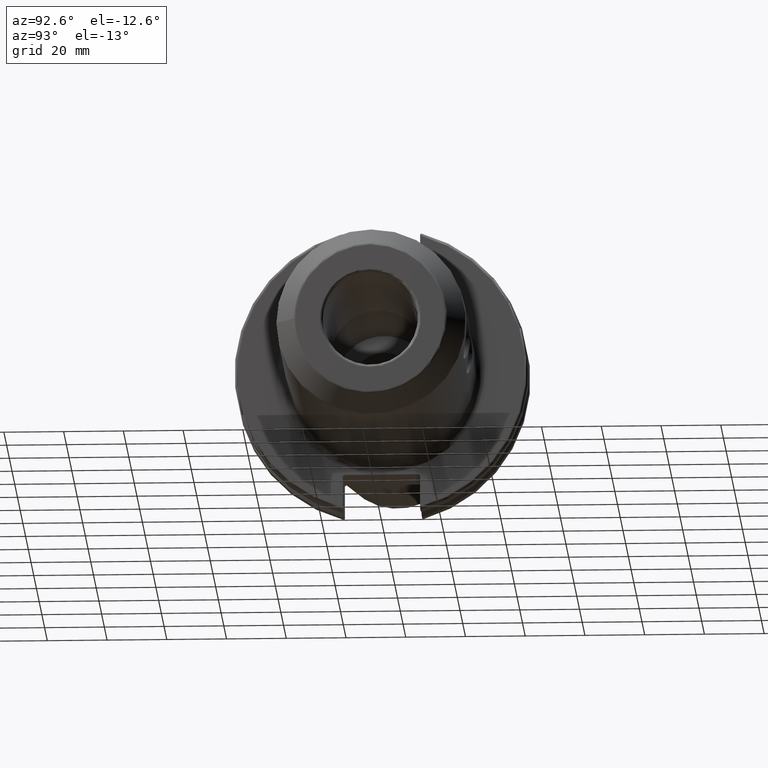
[diagram: clean part render]
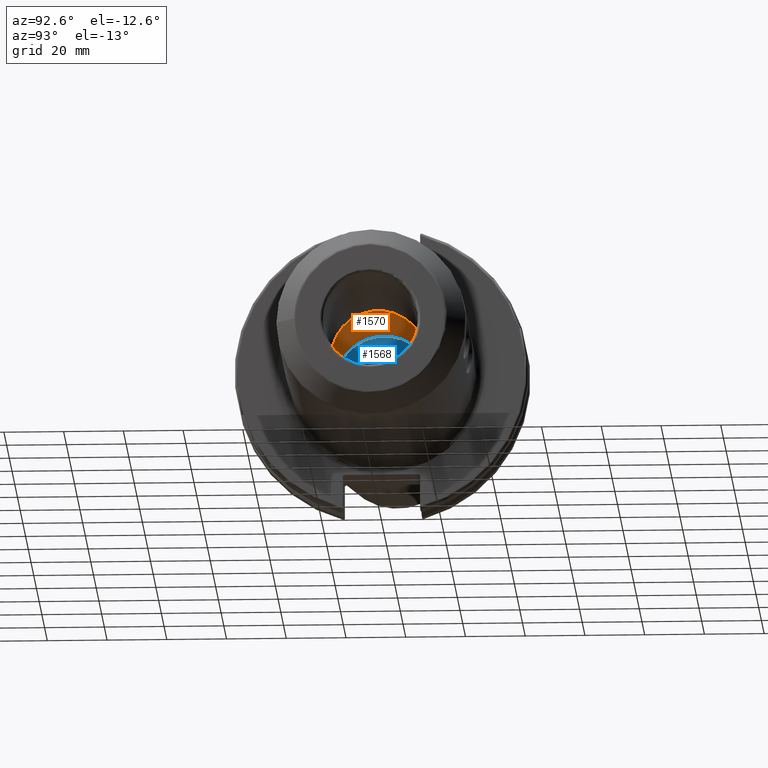
[diagram: same view with the hole feature highlighted: cylindrical wall and planar end face, labeled with their STEP entity ids]
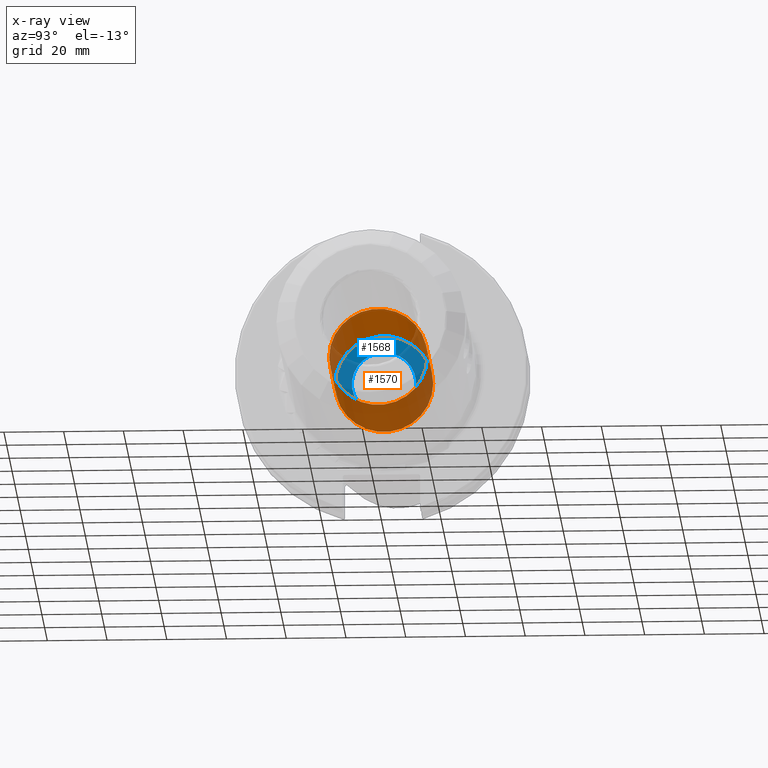
[diagram: x-ray of the same camera — body ghosted, the hole faces saturated]
A machine part, auxiliary view. The highlighted faces form one hole feature of diameter 32.95 mm: the cylindrical wall (entity #1570, orange) and its adjacent planar end face (entity #1568, blue) — they share a circular edge in the B-rep.
The next image is the same camera in x-ray (body ghosted, the hole faces saturated) — the bore reads through the body.
Wall:
#67=FACE_BOUND('',#242,.T.);
#68=FACE_BOUND('',#243,.T.);
#140=FACE_OUTER_BOUND('',#241,.T.);
#241=EDGE_LOOP('',(#1139,#1140,#1141,#1142));
#242=EDGE_LOOP('',(#1143,#1144));
#243=EDGE_LOOP('',(#1145,#1146));
#338=B_SPLINE_CURVE_WITH_KNOTS('',3,(#2539,#2540,#2541,#2542,#2543,#2544,
#2545,#2546,#2547,#2548,#2549,#2550,#2551,#2552,#2553,#2554,#2555,#2556,
#2557,#2558,#2559,#2560,#2561,#2562,#2563,#2564),.UNSPECIFIED.,.F.,.F.,
(4,2,2,2,2,2,2,2,2,2,2,2,4),(0.,0.0611034506742839,0.122206901348568,0.183310157162038,
0.244413412975509,0.305516668788979,0.36661992460245,0.427723375276734,
0.488826825951018,0.549930276625302,0.611033727299586,0.672136983113056,
0.733240238926527),.UNSPECIFIED.);
#339=B_SPLINE_CURVE_WITH_KNOTS('',3,(#2565,#2566,#2567,#2568,#2569,#2570,
#2571,#2572,#2573,#2574),.UNSPECIFIED.,.F.,.F.,(4,2,2,2,4),(0.733240238926527,
0.794343494739997,0.855446750553468,0.916550201227751,0.977653651902035),
 .UNSPECIFIED.);
#340=B_SPLINE_CURVE_WITH_KNOTS('',3,(#2577,#2578,#2579,#2580,#2581,#2582,
#2583,#2584,#2585,#2586,#2587,#2588,#2589,#2590,#2591,#2592,#2593,#2594,
#2595,#2596,#2597,#2598,#2599,#2600,#2601,#2602),.UNSPECIFIED.,.F.,.F.,
(4,2,2,2,2,2,2,2,2,2,2,2,4),(0.,0.0611034506742839,0.122206901348568,0.183310157162038,
0.244413412975509,0.305516668788979,0.36661992460245,0.427723375276734,
0.488826825951018,0.549930276625302,0.611033727299586,0.672136983113056,
0.733240238926526),.UNSPECIFIED.);
#341=B_SPLINE_CURVE_WITH_KNOTS('',3,(#2603,#2604,#2605,#2606,#2607,#2608,
#2609,#2610,#2611,#2612),.UNSPECIFIED.,.F.,.F.,(4,2,2,2,4),(0.733240238926526,
0.794343494739997,0.855446750553468,0.916550201227751,0.977653651902035),
 .UNSPECIFIED.);
#394=LINE('',#2536,#488);
#488=VECTOR('',#1954,16.475);
#590=CIRCLE('',#1709,16.475);
#591=CIRCLE('',#1711,16.475);
#685=VERTEX_POINT('',#2530);
#686=VERTEX_POINT('',#2533);
#687=VERTEX_POINT('',#2537);
#688=VERTEX_POINT('',#2538);
#689=VERTEX_POINT('',#2575);
#690=VERTEX_POINT('',#2576);
#859=EDGE_CURVE('',#685,#685,#590,.T.);
#860=EDGE_CURVE('',#686,#686,#591,.T.);
#861=EDGE_CURVE('',#686,#685,#394,.T.);
#862=EDGE_CURVE('',#687,#688,#338,.T.);
#863=EDGE_CURVE('',#688,#687,#339,.T.);
#864=EDGE_CURVE('',#689,#690,#340,.T.);
#865=EDGE_CURVE('',#690,#689,#341,.T.);
#1139=ORIENTED_EDGE('',*,*,#860,.T.);
#1140=ORIENTED_EDGE('',*,*,#861,.T.);
#1141=ORIENTED_EDGE('',*,*,#859,.T.);
#1142=ORIENTED_EDGE('',*,*,#861,.F.);
#1143=ORIENTED_EDGE('',*,*,#862,.F.);
#1144=ORIENTED_EDGE('',*,*,#863,.F.);
#1145=ORIENTED_EDGE('',*,*,#864,.F.);
#1146=ORIENTED_EDGE('',*,*,#865,.F.);
#1529=CYLINDRICAL_SURFACE('',#1712,16.475);
#1570=ADVANCED_FACE('',(#140,#67,#68),#1529,.F.);
#1709=AXIS2_PLACEMENT_3D('',#2531,#1946,#1947);
#1711=AXIS2_PLACEMENT_3D('',#2534,#1950,#1951);
#1712=AXIS2_PLACEMENT_3D('',#2535,#1952,#1953);
#1946=DIRECTION('center_axis',(-1.,0.,0.));
#1947=DIRECTION('ref_axis',(0.,0.,1.));
#1950=DIRECTION('center_axis',(1.,0.,0.));
#1951=DIRECTION('ref_axis',(0.,0.,-1.));
#1952=DIRECTION('center_axis',(1.,0.,0.));
#1953=DIRECTION('ref_axis',(0.,1.,0.));
#1954=DIRECTION('',(-1.,0.,0.));
#2530=CARTESIAN_POINT('',(4.44089209850063E-15,-16.475,-2.01760560159526E-15));
#2531=CARTESIAN_POINT('Origin',(4.44089209850063E-15,0.,0.));
#2533=CARTESIAN_POINT('',(41.6,-16.475,-2.01760560159526E-15));
#2534=CARTESIAN_POINT('Origin',(41.6,0.,0.));
#2535=CARTESIAN_POINT('Origin',(30.325,0.,0.));
#2536=CARTESIAN_POINT('',(30.325,-16.475,-2.01760560159526E-15));
#2537=CARTESIAN_POINT('',(11.1341,15.9607313108444,4.08419894508451));
#2538=CARTESIAN_POINT('',(9.5131,15.4814359274478,5.63478186129039));
#2539=CARTESIAN_POINT('Ctrl Pts',(11.1341,15.9607313108444,4.08419894508451));
#2540=CARTESIAN_POINT('Ctrl Pts',(11.3377781689143,15.9607313108444,4.08419894508451));
#2541=CARTESIAN_POINT('Ctrl Pts',(11.5549419442518,15.9507342169993,4.12390652759517));
#2542=CARTESIAN_POINT('Ctrl Pts',(11.9542835668171,15.908332639829,4.28456295335947));
#2543=CARTESIAN_POINT('Ctrl Pts',(12.1364726896637,15.8757238056903,4.40542975959047));
#2544=CARTESIAN_POINT('Ctrl Pts',(12.4241670362092,15.7961809728139,4.68263646493506));
#2545=CARTESIAN_POINT('Ctrl Pts',(12.5488979180491,15.7438988011703,4.85748913976199));
#2546=CARTESIAN_POINT('Ctrl Pts',(12.7143680368758,15.6214594433632,5.23789605309087));
#2547=CARTESIAN_POINT('Ctrl Pts',(12.7551,15.5510977418178,5.44338759931068));
#2548=CARTESIAN_POINT('Ctrl Pts',(12.7551,15.4117741130779,5.8261761232701));
#2549=CARTESIAN_POINT('Ctrl Pts',(12.7143680368758,15.3335868837497,6.02881941030954));
#2550=CARTESIAN_POINT('Ctrl Pts',(12.5488979180491,15.18286002289,6.39893051452559));
#2551=CARTESIAN_POINT('Ctrl Pts',(12.4241670362092,15.1105173570525,6.56648176658127));
#2552=CARTESIAN_POINT('Ctrl Pts',(12.1364726896637,14.9932656666498,6.82996357021808));
#2553=CARTESIAN_POINT('Ctrl Pts',(11.9542835668171,14.9405537973707,6.94351347003957));
#2554=CARTESIAN_POINT('Ctrl Pts',(11.5549419442518,14.8697673300437,7.0938386406839));
#2555=CARTESIAN_POINT('Ctrl Pts',(11.3377781689143,14.8519020061826,7.13068242167243));
#2556=CARTESIAN_POINT('Ctrl Pts',(10.9304218310857,14.8519020061826,7.13068242167243));
#2557=CARTESIAN_POINT('Ctrl Pts',(10.7132580557482,14.8697673300437,7.0938386406839));
#2558=CARTESIAN_POINT('Ctrl Pts',(10.3139164331829,14.9405537973707,6.94351347003957));
#2559=CARTESIAN_POINT('Ctrl Pts',(10.1317273103363,14.9932656666498,6.82996357021807));
#2560=CARTESIAN_POINT('Ctrl Pts',(9.84403296379076,15.1105173570525,6.56648176658127));
#2561=CARTESIAN_POINT('Ctrl Pts',(9.71930208195091,15.18286002289,6.39893051452559));
#2562=CARTESIAN_POINT('Ctrl Pts',(9.5538319631242,15.3335868837497,6.02881941030954));
#2563=CARTESIAN_POINT('Ctrl Pts',(9.5131,15.4117741130779,5.82617612327009));
#2564=CARTESIAN_POINT('Ctrl Pts',(9.5131,15.4814359274478,5.63478186129039));
#2565=CARTESIAN_POINT('Ctrl Pts',(9.5131,15.4814359274478,5.63478186129039));
#2566=CARTESIAN_POINT('Ctrl Pts',(9.5131,15.5510977418178,5.44338759931068));
#2567=CARTESIAN_POINT('Ctrl Pts',(9.5538319631242,15.6214594433632,5.23789605309088));
#2568=CARTESIAN_POINT('Ctrl Pts',(9.71930208195091,15.7438988011703,4.857489139762));
#2569=CARTESIAN_POINT('Ctrl Pts',(9.84403296379076,15.7961809728139,4.68263646493506));
#2570=CARTESIAN_POINT('Ctrl Pts',(10.1317273103363,15.8757238056903,4.40542975959047));
#2571=CARTESIAN_POINT('Ctrl Pts',(10.3139164331829,15.908332639829,4.28456295335947));
#2572=CARTESIAN_POINT('Ctrl Pts',(10.7132580557482,15.9507342169993,4.12390652759517));
#2573=CARTESIAN_POINT('Ctrl Pts',(10.9304218310857,15.9607313108444,4.08419894508451));
#2574=CARTESIAN_POINT('Ctrl Pts',(11.1341,15.9607313108444,4.08419894508451));
#2575=CARTESIAN_POINT('',(11.1341,-15.9607313108444,-4.08419894508451));
#2576=CARTESIAN_POINT('',(9.5131,-15.4814359274478,-5.63478186129039));
#2577=CARTESIAN_POINT('Ctrl Pts',(11.1341,-15.9607313108444,-4.08419894508451));
#2578=CARTESIAN_POINT('Ctrl Pts',(11.3377781689143,-15.9607313108444,-4.08419894508451));
#2579=CARTESIAN_POINT('Ctrl Pts',(11.5549419442518,-15.9507342169993,-4.12390652759517));
#2580=CARTESIAN_POINT('Ctrl Pts',(11.9542835668171,-15.908332639829,-4.28456295335947));
#2581=CARTESIAN_POINT('Ctrl Pts',(12.1364726896637,-15.8757238056903,-4.40542975959047));
#2582=CARTESIAN_POINT('Ctrl Pts',(12.4241670362092,-15.7961809728139,-4.68263646493505));
#2583=CARTESIAN_POINT('Ctrl Pts',(12.5488979180491,-15.7438988011703,-4.85748913976199));
#2584=CARTESIAN_POINT('Ctrl Pts',(12.7143680368758,-15.6214594433632,-5.23789605309087));
#2585=CARTESIAN_POINT('Ctrl Pts',(12.7551,-15.5510977418178,-5.44338759931068));
#2586=CARTESIAN_POINT('Ctrl Pts',(12.7551,-15.4117741130779,-5.82617612327009));
#2587=CARTESIAN_POINT('Ctrl Pts',(12.7143680368758,-15.3335868837497,-6.02881941030954));
#2588=CARTESIAN_POINT('Ctrl Pts',(12.5488979180491,-15.18286002289,-6.39893051452559));
#2589=CARTESIAN_POINT('Ctrl Pts',(12.4241670362092,-15.1105173570525,-6.56648176658127));
#2590=CARTESIAN_POINT('Ctrl Pts',(12.1364726896637,-14.9932656666498,-6.82996357021807));
#2591=CARTESIAN_POINT('Ctrl Pts',(11.9542835668171,-14.9405537973707,-6.94351347003957));
#2592=CARTESIAN_POINT('Ctrl Pts',(11.5549419442518,-14.8697673300437,-7.0938386406839));
#2593=CARTESIAN_POINT('Ctrl Pts',(11.3377781689143,-14.8519020061826,-7.13068242167243));
#2594=CARTESIAN_POINT('Ctrl Pts',(10.9304218310857,-14.8519020061826,-7.13068242167243));
#2595=CARTESIAN_POINT('Ctrl Pts',(10.7132580557482,-14.8697673300437,-7.0938386406839));
#2596=CARTESIAN_POINT('Ctrl Pts',(10.3139164331829,-14.9405537973707,-6.94351347003957));
#2597=CARTESIAN_POINT('Ctrl Pts',(10.1317273103363,-14.9932656666498,-6.82996357021807));
#2598=CARTESIAN_POINT('Ctrl Pts',(9.84403296379076,-15.1105173570525,-6.56648176658127));
#2599=CARTESIAN_POINT('Ctrl Pts',(9.71930208195091,-15.18286002289,-6.39893051452559));
#2600=CARTESIAN_POINT('Ctrl Pts',(9.5538319631242,-15.3335868837497,-6.02881941030954));
#2601=CARTESIAN_POINT('Ctrl Pts',(9.5131,-15.4117741130779,-5.82617612327009));
#2602=CARTESIAN_POINT('Ctrl Pts',(9.5131,-15.4814359274478,-5.63478186129039));
#2603=CARTESIAN_POINT('Ctrl Pts',(9.5131,-15.4814359274478,-5.63478186129039));
#2604=CARTESIAN_POINT('Ctrl Pts',(9.5131,-15.5510977418178,-5.44338759931068));
#2605=CARTESIAN_POINT('Ctrl Pts',(9.5538319631242,-15.6214594433632,-5.23789605309087));
#2606=CARTESIAN_POINT('Ctrl Pts',(9.71930208195091,-15.7438988011703,-4.85748913976199));
#2607=CARTESIAN_POINT('Ctrl Pts',(9.84403296379076,-15.7961809728139,-4.68263646493505));
#2608=CARTESIAN_POINT('Ctrl Pts',(10.1317273103363,-15.8757238056903,-4.40542975959047));
#2609=CARTESIAN_POINT('Ctrl Pts',(10.3139164331829,-15.908332639829,-4.28456295335947));
#2610=CARTESIAN_POINT('Ctrl Pts',(10.7132580557482,-15.9507342169993,-4.12390652759517));
#2611=CARTESIAN_POINT('Ctrl Pts',(10.9304218310857,-15.9607313108444,-4.08419894508451));
#2612=CARTESIAN_POINT('Ctrl Pts',(11.1341,-15.9607313108444,-4.08419894508451));
End face:
#65=FACE_BOUND('',#238,.T.);
#87=PLANE('',#1708);
#138=FACE_OUTER_BOUND('',#237,.T.);
#237=EDGE_LOOP('',(#1135));
#238=EDGE_LOOP('',(#1136));
#589=CIRCLE('',#1707,10.75);
#590=CIRCLE('',#1709,16.475);
#684=VERTEX_POINT('',#2526);
#685=VERTEX_POINT('',#2530);
#858=EDGE_CURVE('',#684,#684,#589,.T.);
#859=EDGE_CURVE('',#685,#685,#590,.T.);
#1135=ORIENTED_EDGE('',*,*,#859,.F.);
#1136=ORIENTED_EDGE('',*,*,#858,.T.);
#1568=ADVANCED_FACE('',(#138,#65),#87,.F.);
#1707=AXIS2_PLACEMENT_3D('',#2528,#1942,#1943);
#1708=AXIS2_PLACEMENT_3D('',#2529,#1944,#1945);
#1709=AXIS2_PLACEMENT_3D('',#2531,#1946,#1947);
#1942=DIRECTION('center_axis',(-1.,0.,0.));
#1943=DIRECTION('ref_axis',(0.,0.,1.));
#1944=DIRECTION('center_axis',(-1.,0.,0.));
#1945=DIRECTION('ref_axis',(0.,0.,1.));
#1946=DIRECTION('center_axis',(-1.,0.,0.));
#1947=DIRECTION('ref_axis',(0.,0.,1.));
#2526=CARTESIAN_POINT('',(0.,-1.3164953090834E-15,-10.75));
#2528=CARTESIAN_POINT('Origin',(0.,0.,0.));
#2529=CARTESIAN_POINT('Origin',(5.42341872339446E-30,0.,0.));
#2530=CARTESIAN_POINT('',(4.44089209850063E-15,-16.475,-2.01760560159526E-15));
#2531=CARTESIAN_POINT('Origin',(4.44089209850063E-15,0.,0.));